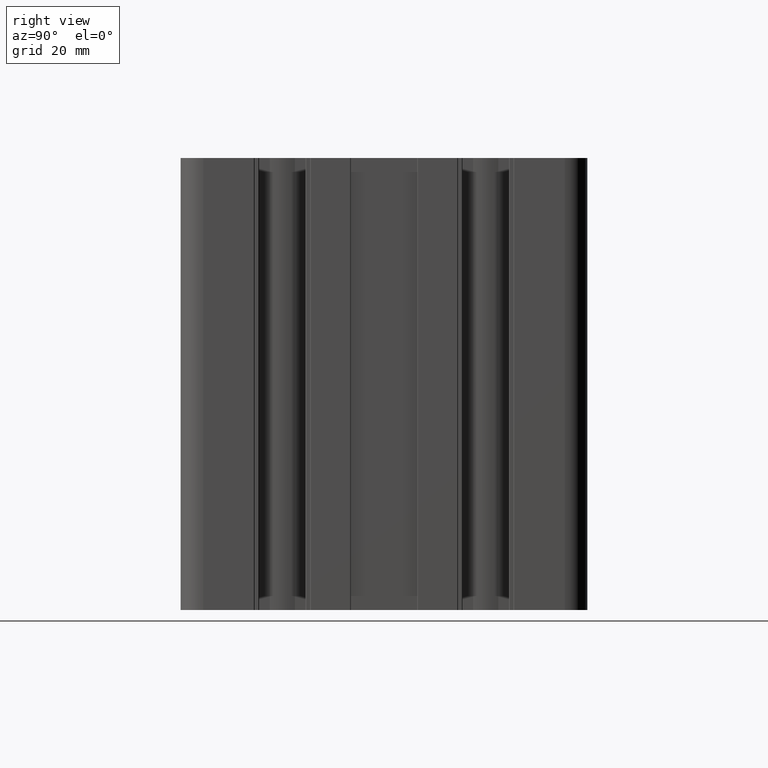
[diagram: clean part render]
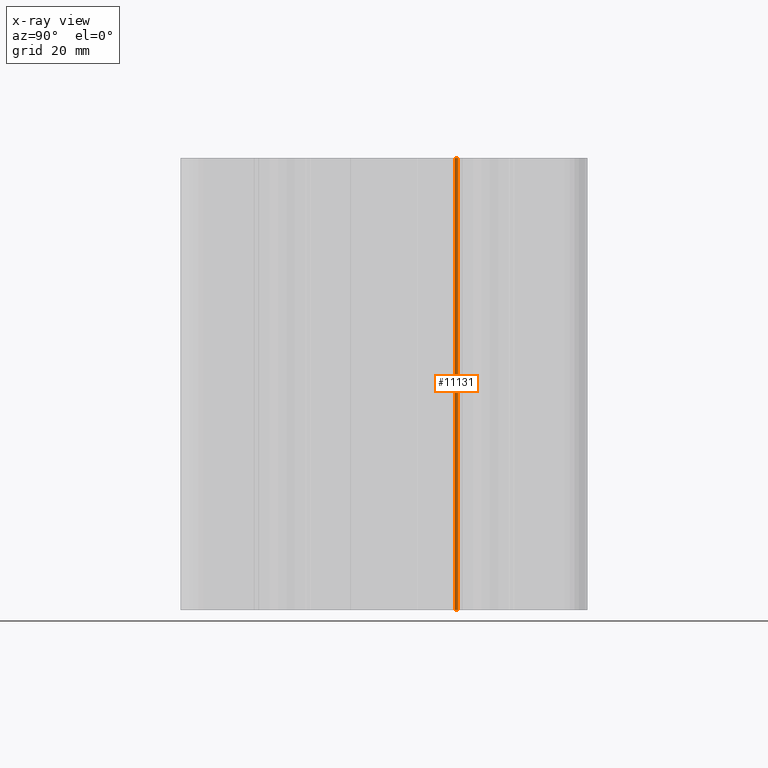
[diagram: x-ray — body ghosted, one internal face saturated and labeled with its STEP entity id]
A machine part, right view, then the same camera in x-ray: the body is ghosted and one INTERNAL B-rep face — a face not visible from any outside direction — is saturated and labeled: STEP entity #11131.
In plain terms, the highlighted cylindrical surface (edge-blend (fillet) strip) has radius 0.5 mm, axis along (0, 0, 1).
Its self-contained STEP definition (entity closure, byte-faithful):
#537=FACE_OUTER_BOUND('',#1111,.T.);
#1111=EDGE_LOOP('',(#8081,#8082,#8083,#8084));
#1883=LINE('',#17464,#3007);
#1884=LINE('',#17470,#3008);
#3007=VECTOR('',#14051,100.);
#3008=VECTOR('',#14058,100.);
#3997=CIRCLE('',#11980,0.5);
#3998=CIRCLE('',#11981,0.5);
#4769=VERTEX_POINT('',#17460);
#4770=VERTEX_POINT('',#17462);
#4771=VERTEX_POINT('',#17466);
#4772=VERTEX_POINT('',#17468);
#6139=EDGE_CURVE('',#4770,#4769,#1883,.T.);
#6140=EDGE_CURVE('',#4769,#4771,#3997,.T.);
#6141=EDGE_CURVE('',#4772,#4770,#3998,.T.);
#6142=EDGE_CURVE('',#4772,#4771,#1884,.T.);
#8081=ORIENTED_EDGE('',*,*,#6140,.F.);
#8082=ORIENTED_EDGE('',*,*,#6139,.F.);
#8083=ORIENTED_EDGE('',*,*,#6141,.F.);
#8084=ORIENTED_EDGE('',*,*,#6142,.T.);
#10745=CYLINDRICAL_SURFACE('',#11979,0.5);
#11131=ADVANCED_FACE('',(#537),#10745,.F.);
#11979=AXIS2_PLACEMENT_3D('',#17465,#14052,#14053);
#11980=AXIS2_PLACEMENT_3D('',#17467,#14054,#14055);
#11981=AXIS2_PLACEMENT_3D('',#17469,#14056,#14057);
#14051=DIRECTION('',(0.,0.,1.));
#14052=DIRECTION('center_axis',(0.,0.,1.));
#14053=DIRECTION('ref_axis',(-0.819152234736369,0.573576164363908,0.));
#14054=DIRECTION('center_axis',(0.,0.,-1.));
#14055=DIRECTION('ref_axis',(-0.819152234736369,0.573576164363908,0.));
#14056=DIRECTION('center_axis',(0.,0.,1.));
#14057=DIRECTION('ref_axis',(-0.819152234736369,0.573576164363908,0.));
#14058=DIRECTION('',(0.,0.,1.));
#17460=CARTESIAN_POINT('',(-26.6415222115897,15.6554563325072,100.));
#17462=CARTESIAN_POINT('',(-26.6415222115897,15.6554563325072,0.));
#17464=CARTESIAN_POINT('',(-26.6415222115897,15.6554563325072,0.));
#17465=CARTESIAN_POINT('Origin',(-26.3826770295535,16.0832403571465,0.));
#17466=CARTESIAN_POINT('',(-26.7922531469216,16.3700284393285,100.));
#17467=CARTESIAN_POINT('Origin',(-26.3826770295535,16.0832403571465,100.));
#17468=CARTESIAN_POINT('',(-26.7922531469216,16.3700284393285,0.));
#17469=CARTESIAN_POINT('Origin',(-26.3826770295535,16.0832403571465,0.));
#17470=CARTESIAN_POINT('',(-26.7922531469216,16.3700284393285,0.));